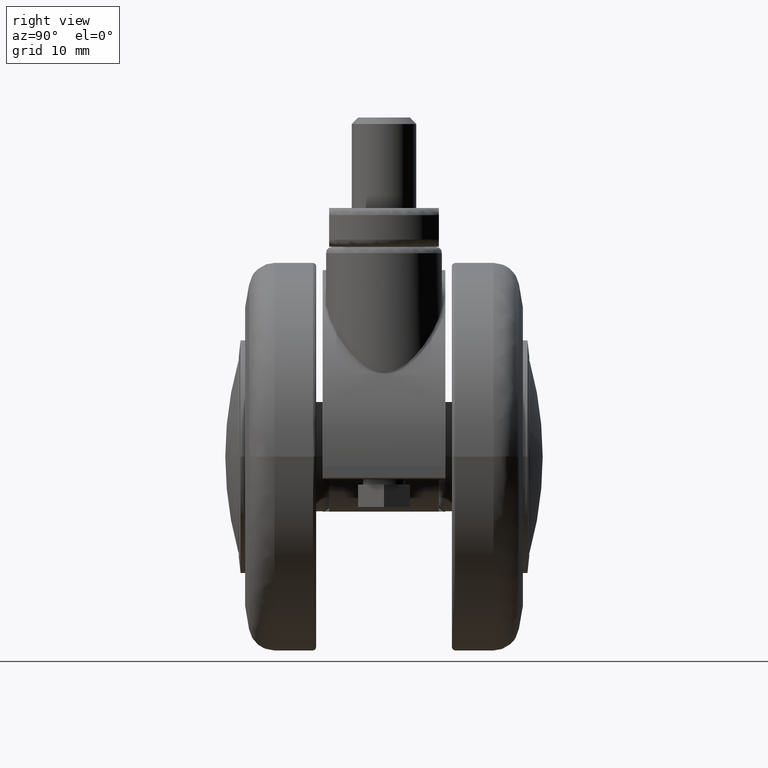
[diagram: clean part render]
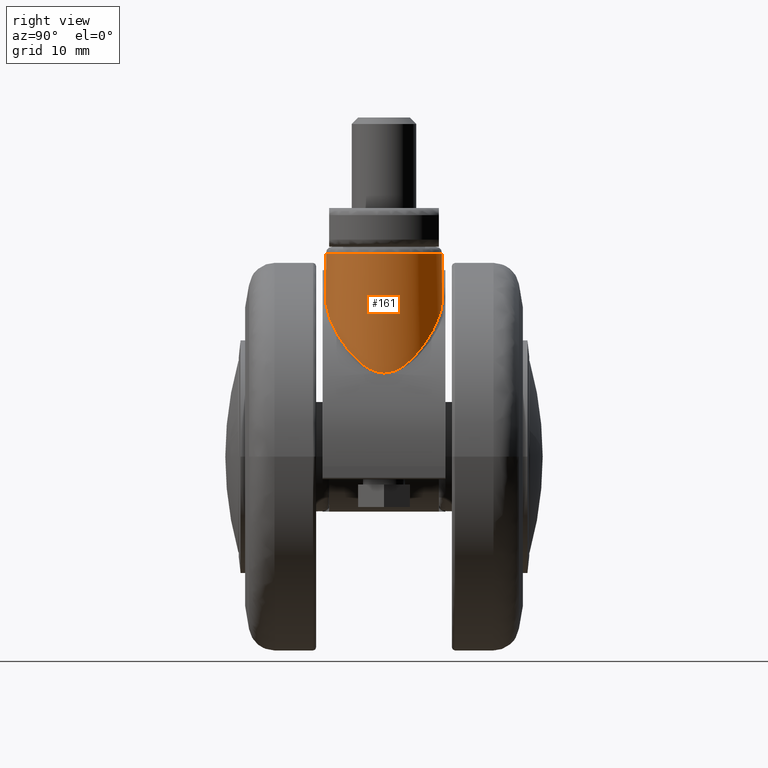
[diagram: same view with one face highlighted and labeled with its STEP entity id]
A machine part, right view. The second image highlights one B-rep face of the part: STEP entity #161.
In plain terms, the highlighted cylindrical surface (partial cylindrical patch) has radius 9 mm, axis along (0, 0, 1).
Its self-contained STEP definition (entity closure, byte-faithful):
#161=ADVANCED_FACE('',(#338),#337,.T.);
#337=CYLINDRICAL_SURFACE('',#1987,9.00000000000E+00);
#338=FACE_OUTER_BOUND('',#1988,.T.);
#1984=CARTESIAN_POINT('',(1.70000000000E+01,0.00000000000E+00,2.22307405472E+01));
#1985=DIRECTION('',(-0.00000000000E+00,-0.00000000000E+00,1.00000000000E+00));
#1986=DIRECTION('',(-1.00000000000E+00,-0.00000000000E+00,-0.00000000000E+00));
#1987=AXIS2_PLACEMENT_3D('',#1984,#1985,#1986);
#1988=EDGE_LOOP('',(#4508,#4509,#4510,#4511,#4512,#4513,#4514));
#4508=ORIENTED_EDGE('',*,*,#5234,.T.);
#4509=ORIENTED_EDGE('',*,*,#5235,.T.);
#4510=ORIENTED_EDGE('',*,*,#5236,.T.);
#4511=ORIENTED_EDGE('',*,*,#5228,.T.);
#4512=ORIENTED_EDGE('',*,*,#5237,.T.);
#4513=ORIENTED_EDGE('',*,*,#5238,.T.);
#4514=ORIENTED_EDGE('',*,*,#5224,.T.);
#5224=EDGE_CURVE('',#5606,#5599,#5607,.T.);
#5228=EDGE_CURVE('',#5634,#5627,#5635,.T.);
#5234=EDGE_CURVE('',#5599,#5675,#5676,.T.);
#5235=EDGE_CURVE('',#5675,#5682,#5683,.T.);
#5236=EDGE_CURVE('',#5682,#5634,#5689,.T.);
#5237=EDGE_CURVE('',#5627,#5695,#5696,.T.);
#5238=EDGE_CURVE('',#5695,#5606,#5702,.T.);
#5599=VERTEX_POINT('',#8053);
#5606=VERTEX_POINT('',#8058);
#5607=(BOUNDED_CURVE() B_SPLINE_CURVE(3,(#8059,#8060,#8061,#8062,#8063,#8064,#8065,#8066,#8067,#8068,#8069,#8070,#8071,#8072,#8073,#8074,#8075,#8076,#8077,#8078,#8079,#8080,#8081,#8082),.UNSPECIFIED.,.F.,.F.) B_SPLINE_CURVE_WITH_KNOTS((4,2,1,2,2,1,2,2,2,2,2,2,4),(0.00000000000E+00,1.05891572198E-01,1.19128018722E-01,1.22437130354E-01,1.25746241985E-01,1.32364465247E-01,1.58837358297E-01,2.11783144396E-01,2.64728930494E-01,2.91201823544E-01,3.17674716593E-01,3.70620502692E-01,4.23566288791E-01),.UNSPECIFIED.) CURVE() GEOMETRIC_REPRESENTATION_ITEM() RATIONAL_B_SPLINE_CURVE((1.00000000000E+00,1.00000000000E+00,1.00000000000E+00,1.00000000000E+00,1.00000000000E+00,1.00000000000E+00,1.00000000000E+00,1.00000000000E+00,1.00000000000E+00,1.00000000000E+00,1.00000000000E+00,1.00000000000E+00,1.00000000000E+00,1.00000000000E+00,1.00000000000E+00,1.00000000000E+00,1.00000000000E+00,1.00000000000E+00,1.00000000000E+00,1.00000000000E+00,1.00000000000E+00,1.00000000000E+00,1.00000000000E+00,1.00000000000E+00)) REPRESENTATION_ITEM('') );
#5627=VERTEX_POINT('',#8146);
#5634=VERTEX_POINT('',#8151);
#5635=(BOUNDED_CURVE() B_SPLINE_CURVE(3,(#8152,#8153,#8154,#8155,#8156,#8157,#8158,#8159,#8160,#8161),.UNSPECIFIED.,.F.,.F.) B_SPLINE_CURVE_WITH_KNOTS((4,1,1,1,1,1,1,4),(0.00000000000E+00,5.55038262083E-02,1.66282508042E-01,2.51074083934E-01,3.35844443081E-01,3.90782034326E-01,4.45609946491E-01,5.00465394577E-01),.UNSPECIFIED.) CURVE() GEOMETRIC_REPRESENTATION_ITEM() RATIONAL_B_SPLINE_CURVE((1.00000000000E+00,1.00000000000E+00,1.00000000000E+00,1.00000000000E+00,1.00000000000E+00,1.00000000000E+00,1.00000000000E+00,1.00000000000E+00,1.00000000000E+00,1.00000000000E+00)) REPRESENTATION_ITEM('') );
#5675=VERTEX_POINT('',#8184);
#5676=CIRCLE('',#8188,9.00000000000E+00);
#5682=VERTEX_POINT('',#8189);
#5683=(BOUNDED_CURVE() B_SPLINE_CURVE(3,(#8190,#8191,#8192,#8193,#8194,#8195,#8196,#8197,#8198,#8199,#8200,#8201,#8202,#8203,#8204,#8205,#8206,#8207,#8208,#8209,#8210,#8211,#8212,#8213,#8214,#8215,#8216,#8217,#8218,#8219,#8220,#8221,#8222,#8223),.UNSPECIFIED.,.F.,.F.) B_SPLINE_CURVE_WITH_KNOTS((4,2,2,2,2,2,2,2,2,2,2,1,2,1,2,2,2,4),(5.75154589672E-01,6.81365942254E-01,7.07918780399E-01,7.34471618545E-01,7.47748037617E-01,7.61024456690E-01,7.87577294836E-01,8.40682971127E-01,8.67235809272E-01,8.73874018809E-01,8.80512228345E-01,8.93788647418E-01,9.20341485563E-01,9.33617904636E-01,9.36937009404E-01,9.40256114173E-01,9.46894323709E-01,1.00000000000E+00),.UNSPECIFIED.) CURVE() GEOMETRIC_REPRESENTATION_ITEM() RATIONAL_B_SPLINE_CURVE((1.00000000000E+00,1.00000000000E+00,1.00000000000E+00,1.00000000000E+00,1.00000000000E+00,1.00000000000E+00,1.00000000000E+00,1.00000000000E+00,1.00000000000E+00,1.00000000000E+00,1.00000000000E+00,1.00000000000E+00,1.00000000000E+00,1.00000000000E+00,1.00000000000E+00,1.00000000000E+00,1.00000000000E+00,1.00000000000E+00,1.00000000000E+00,1.00000000000E+00,1.00000000000E+00,1.00000000000E+00,1.00000000000E+00,1.00000000000E+00,1.00000000000E+00,1.00000000000E+00,1.00000000000E+00,1.00000000000E+00,1.00000000000E+00,1.00000000000E+00,1.00000000000E+00,1.00000000000E+00,1.00000000000E+00,1.00000000000E+00)) REPRESENTATION_ITEM('') );
#5689=(BOUNDED_CURVE() B_SPLINE_CURVE(3,(#8224,#8225,#8226,#8227),.UNSPECIFIED.,.F.,.F.) B_SPLINE_CURVE_WITH_KNOTS((4,4),(0.00000000000E+00,1.00000000000E+00),.UNSPECIFIED.) CURVE() GEOMETRIC_REPRESENTATION_ITEM() RATIONAL_B_SPLINE_CURVE((1.00000000000E+00,1.00000000000E+00,1.00000000000E+00,1.00000000000E+00)) REPRESENTATION_ITEM('') );
#5695=VERTEX_POINT('',#8228);
#5696=(BOUNDED_CURVE() B_SPLINE_CURVE(3,(#8229,#8230,#8231,#8232,#8233,#8234,#8235,#8236,#8237,#8238),.UNSPECIFIED.,.F.,.F.) B_SPLINE_CURVE_WITH_KNOTS((4,1,1,1,1,1,1,4),(5.00465394577E-01,5.55148492476E-01,6.09804880016E-01,6.64569182517E-01,7.49277052761E-01,8.34007071074E-01,9.44592996177E-01,1.00000000000E+00),.UNSPECIFIED.) CURVE() GEOMETRIC_REPRESENTATION_ITEM() RATIONAL_B_SPLINE_CURVE((1.00000000000E+00,1.00000000000E+00,1.00000000000E+00,1.00000000000E+00,1.00000000000E+00,1.00000000000E+00,1.00000000000E+00,1.00000000000E+00,1.00000000000E+00,1.00000000000E+00)) REPRESENTATION_ITEM('') );
#5702=(BOUNDED_CURVE() B_SPLINE_CURVE(3,(#8239,#8240,#8241,#8242),.UNSPECIFIED.,.F.,.F.) B_SPLINE_CURVE_WITH_KNOTS((4,4),(0.00000000000E+00,1.00000000000E+00),.UNSPECIFIED.) CURVE() GEOMETRIC_REPRESENTATION_ITEM() RATIONAL_B_SPLINE_CURVE((1.00000000000E+00,1.00000000000E+00,1.00000000000E+00,1.00000000000E+00)) REPRESENTATION_ITEM('') );
#8053=CARTESIAN_POINT('',(8.15866062857E+00,1.68247394731E+00,3.15000000350E+01));
#8058=CARTESIAN_POINT('',(1.34988316182E+01,8.29106868637E+00,2.73886703115E+01));
#8059=CARTESIAN_POINT('',(1.34988316182E+01,8.29106868637E+00,2.73886703115E+01));
#8060=CARTESIAN_POINT('',(1.28480725346E+01,8.01626489282E+00,2.79635978661E+01));
#8061=CARTESIAN_POINT('',(1.22557131024E+01,7.67568354675E+00,2.84660494577E+01));
#8062=CARTESIAN_POINT('',(1.16617559419E+01,7.24636331222E+00,2.89497720400E+01));
#8063=CARTESIAN_POINT('',(1.15805063193E+01,7.18593041620E+00,2.90155401859E+01));
#8064=CARTESIAN_POINT('',(1.15008168165E+01,7.12456229457E+00,2.90795388990E+01));
#8065=CARTESIAN_POINT('',(1.14690658525E+01,7.09994162172E+00,2.91049968296E+01));
#8066=CARTESIAN_POINT('',(1.14538375255E+01,7.08805896362E+00,2.91171892412E+01));
#8067=CARTESIAN_POINT('',(1.14012111949E+01,7.04666986437E+00,2.91592413232E+01));
#8068=CARTESIAN_POINT('',(1.12263539309E+01,6.90703781982E+00,2.92984235940E+01));
#8069=CARTESIAN_POINT('',(1.10544904232E+01,6.75903074025E+00,2.94326491850E+01));
#8070=CARTESIAN_POINT('',(1.06491882322E+01,6.38760617061E+00,2.97452737780E+01));
#8071=CARTESIAN_POINT('',(1.03868297793E+01,6.11616768853E+00,2.99426242070E+01));
#8072=CARTESIAN_POINT('',(9.89947743666E+00,5.54293305835E+00,3.03018781085E+01));
#8073=CARTESIAN_POINT('',(9.67507776243E+00,5.24332717413E+00,3.04633798319E+01));
#8074=CARTESIAN_POINT('',(9.36056930128E+00,4.76191558197E+00,3.06847692345E+01));
#8075=CARTESIAN_POINT('',(9.26002981395E+00,4.59682229853E+00,3.07546834988E+01));
#8076=CARTESIAN_POINT('',(9.06846122727E+00,4.25777012320E+00,3.08867476208E+01));
#8077=CARTESIAN_POINT('',(8.97691882772E+00,4.08267745027E+00,3.09492166405E+01));
#8078=CARTESIAN_POINT('',(8.72276671914E+00,3.55524343101E+00,3.11219097934E+01));
#8079=CARTESIAN_POINT('',(8.57622321855E+00,3.19255191699E+00,3.12205221646E+01));
#8080=CARTESIAN_POINT('',(8.33141950873E+00,2.45114570617E+00,3.13847141124E+01));
#8081=CARTESIAN_POINT('',(8.23206688990E+00,2.06822114544E+00,3.14509874854E+01));
#8082=CARTESIAN_POINT('',(8.15866062857E+00,1.68247394731E+00,3.15000000350E+01));
#8146=CARTESIAN_POINT('',(2.60000000000E+01,5.10458122157E-08,1.29614813969E+01));
#8151=CARTESIAN_POINT('',(1.76660523673E+01,-8.97532028643E+00,2.36289074528E+01));
#8152=CARTESIAN_POINT('',(1.76660523673E+01,-8.97532028643E+00,2.36289074528E+01));
#8153=CARTESIAN_POINT('',(1.81508110087E+01,-8.94000343044E+00,2.32051526548E+01));
#8154=CARTESIAN_POINT('',(1.96248622430E+01,-8.70535284671E+00,2.19733899941E+01));
#8155=CARTESIAN_POINT('',(2.15774083629E+01,-7.87231787559E+00,1.99260597013E+01));
#8156=CARTESIAN_POINT('',(2.33757849633E+01,-6.46338141439E+00,1.75920623832E+01));
#8157=CARTESIAN_POINT('',(2.45495450057E+01,-5.01111500265E+00,1.57488907547E+01));
#8158=CARTESIAN_POINT('',(2.53521426501E+01,-3.46842222753E+00,1.42954617850E+01));
#8159=CARTESIAN_POINT('',(2.58564140147E+01,-1.90006918211E+00,1.32764525698E+01));
#8160=CARTESIAN_POINT('',(2.60011472768E+01,-6.39724945420E-01,1.29583942721E+01));
#8161=CARTESIAN_POINT('',(2.60000000000E+01,5.10458122157E-08,1.29614813969E+01));
#8184=CARTESIAN_POINT('',(8.15809360303E+00,-1.67949150810E+00,3.14999999460E+01));
#8185=CARTESIAN_POINT('',(1.70000000000E+01,0.00000000000E+00,3.15000000000E+01));
#8186=DIRECTION('',(0.00000000000E+00,0.00000000000E+00,-1.00000000000E+00));
#8187=DIRECTION('',(-9.82371038455E-01,1.86941549166E-01,0.00000000000E+00));
#8188=AXIS2_PLACEMENT_3D('',#8185,#8186,#8187);
#8189=CARTESIAN_POINT('',(1.34992265978E+01,-8.29123546805E+00,2.73881729636E+01));
#8190=CARTESIAN_POINT('',(8.15809360303E+00,-1.67949150810E+00,3.14999999460E+01));
#8191=CARTESIAN_POINT('',(8.30652137094E+00,-2.46090830176E+00,3.14011649753E+01));
#8192=CARTESIAN_POINT('',(8.55487267530E+00,-3.20749520847E+00,3.12375934820E+01));
#8193=CARTESIAN_POINT('',(8.97837897267E+00,-4.08553652035E+00,3.09490481177E+01));
#8194=CARTESIAN_POINT('',(9.07097531083E+00,-4.26250384027E+00,3.08856919652E+01));
#8195=CARTESIAN_POINT('',(9.26394439559E+00,-4.60345687449E+00,3.07528277633E+01));
#8196=CARTESIAN_POINT('',(9.36502992667E+00,-4.76907595184E+00,3.06827740558E+01));
#8197=CARTESIAN_POINT('',(9.52275741414E+00,-5.00999567625E+00,3.05722610849E+01));
#8198=CARTESIAN_POINT('',(9.57634992096E+00,-5.08905157993E+00,3.05345180263E+01));
#8199=CARTESIAN_POINT('',(9.68543665566E+00,-5.24463435912E+00,3.04572211058E+01));
#8200=CARTESIAN_POINT('',(9.73838676825E+00,-5.31765196185E+00,3.04194588091E+01));
#8201=CARTESIAN_POINT('',(9.90357311874E+00,-5.53845844787E+00,3.03008209030E+01));
#8202=CARTESIAN_POINT('',(1.00184124315E+01,-5.68255938423E+00,3.02172764188E+01));
#8203=CARTESIAN_POINT('',(1.03765730377E+01,-6.10462118405E+00,2.99532853252E+01));
#8204=CARTESIAN_POINT('',(1.06335578688E+01,-6.37233140332E+00,2.97594810753E+01));
#8205=CARTESIAN_POINT('',(1.10439619193E+01,-6.74982656164E+00,2.94420594189E+01));
#8206=CARTESIAN_POINT('',(1.11849124884E+01,-6.87164884810E+00,2.93317996532E+01));
#8207=CARTESIAN_POINT('',(1.13659995533E+01,-7.01856210400E+00,2.91884092624E+01));
#8208=CARTESIAN_POINT('',(1.14024618098E+01,-7.04767658195E+00,2.91594529001E+01));
#8209=CARTESIAN_POINT('',(1.14758684236E+01,-7.10536060459E+00,2.91009836071E+01));
#8210=CARTESIAN_POINT('',(1.15094892307E+01,-7.13135411237E+00,2.90741219870E+01));
#8211=CARTESIAN_POINT('',(1.16140368253E+01,-7.21103880268E+00,2.89903418423E+01));
#8212=CARTESIAN_POINT('',(1.18250801982E+01,-7.36706515947E+00,2.88201899756E+01));
#8213=CARTESIAN_POINT('',(1.20416241684E+01,-7.51295968758E+00,2.86422633772E+01));
#8214=CARTESIAN_POINT('',(1.22613783833E+01,-7.65199181340E+00,2.84591536243E+01));
#8215=CARTESIAN_POINT('',(1.23536114696E+01,-7.70849260194E+00,2.83817780701E+01));
#8216=CARTESIAN_POINT('',(1.24466214179E+01,-7.76319578428E+00,2.83030527360E+01));
#8217=CARTESIAN_POINT('',(1.24838863689E+01,-7.78493307407E+00,2.82714546200E+01));
#8218=CARTESIAN_POINT('',(1.24997455419E+01,-7.79410600701E+00,2.82579833431E+01));
#8219=CARTESIAN_POINT('',(1.25503624541E+01,-7.82318606793E+00,2.82149338376E+01));
#8220=CARTESIAN_POINT('',(1.25843997200E+01,-7.84244979722E+00,2.81859026320E+01));
#8221=CARTESIAN_POINT('',(1.28933763677E+01,-8.01464286390E+00,2.79216379636E+01));
#8222=CARTESIAN_POINT('',(1.31868643183E+01,-8.15934765715E+00,2.76655177752E+01));
#8223=CARTESIAN_POINT('',(1.34992265978E+01,-8.29123546805E+00,2.73881729636E+01));
#8224=CARTESIAN_POINT('',(1.34992265978E+01,-8.29123546805E+00,2.73881729636E+01));
#8225=CARTESIAN_POINT('',(1.48391375245E+01,-8.85137756212E+00,2.61710054021E+01));
#8226=CARTESIAN_POINT('',(1.62210538204E+01,-9.07790989122E+00,2.48498819169E+01));
#8227=CARTESIAN_POINT('',(1.76660523673E+01,-8.97532028643E+00,2.36289074528E+01));
#8228=CARTESIAN_POINT('',(1.76654953534E+01,8.97536160467E+00,2.36292978499E+01));
#8229=CARTESIAN_POINT('',(2.60000000000E+01,5.10458122157E-08,1.29614813969E+01));
#8230=CARTESIAN_POINT('',(2.60011172203E+01,6.38917764542E-01,1.29583925330E+01));
#8231=CARTESIAN_POINT('',(2.58567955851E+01,1.89776058408E+00,1.32756687939E+01));
#8232=CARTESIAN_POINT('',(2.53535640135E+01,3.46477856492E+00,1.42926471784E+01));
#8233=CARTESIAN_POINT('',(2.45517067145E+01,5.00798056039E+00,1.57452576804E+01));
#8234=CARTESIAN_POINT('',(2.33777567093E+01,6.46169397260E+00,1.75893958287E+01));
#8235=CARTESIAN_POINT('',(2.15782435477E+01,7.87197077506E+00,1.99252413039E+01));
#8236=CARTESIAN_POINT('',(1.96247262049E+01,8.70548618423E+00,2.19736345251E+01));
#8237=CARTESIAN_POINT('',(1.81500784611E+01,8.94007463837E+00,2.32051857971E+01));
#8238=CARTESIAN_POINT('',(1.76654953534E+01,8.97536160467E+00,2.36292978499E+01));
#8239=CARTESIAN_POINT('',(1.76654953534E+01,8.97536160467E+00,2.36292978499E+01));
#8240=CARTESIAN_POINT('',(1.62218283889E+01,9.07801841213E+00,2.48517044571E+01));
#8241=CARTESIAN_POINT('',(1.48373460347E+01,8.85105211261E+00,2.61700605445E+01));
#8242=CARTESIAN_POINT('',(1.34988316182E+01,8.29106868637E+00,2.73886703115E+01));